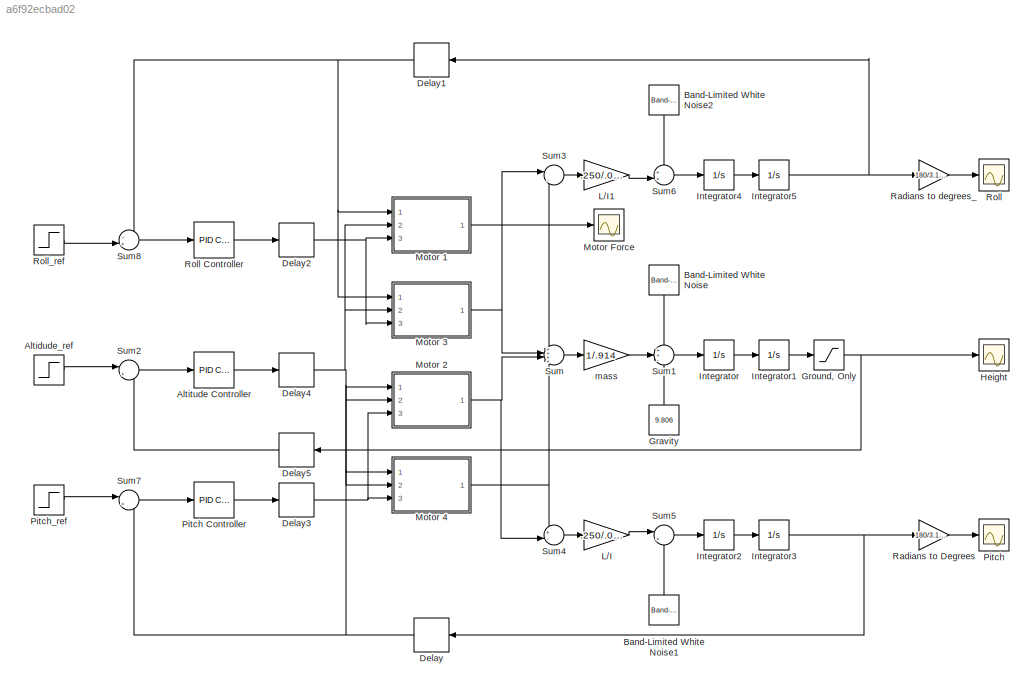
MODEL slx_a6f92ecbad02
KIND model
CONFIG AbsTol = auto
CONFIG EnableMultiTasking = off
CONFIG FixedStep = auto
CONFIG MaxStep = auto
CONFIG MinStep = auto
CONFIG RelTol = 1e-3
CONFIG SampleTimeConstraint = Unconstrained
CONFIG Solver = VariableStepAuto
CONFIG SolverName = VariableStepAuto
CONFIG StartTime = 0.0
CONFIG StopTime = 10
BLOCK [Step] Altidude_ref
  SampleTime = 0
  Time = 0
BLOCK [Reference] Altitude Controller  REF=simulink/Continuous/PID Controller
  Ports = [1, 1]
  SourceBlock = simulink/Continuous/PID Controller
  SourceProductBaseCode = SL
  SourceProductName = Simulink
  SourceType = PID 1dof
BLOCK [Reference] Band-Limited White Noise  REF=simulink/Sources/Band-Limited
White Noise
  Ports = [0, 1]
  SourceBlock = simulink/Sources/Band-Limited\nWhite Noise
  SourceProductBaseCode = SL
  SourceProductName = Simulink
  SourceType = Band-Limited White Noise.
BLOCK [Reference] Band-Limited White Noise1  REF=simulink/Sources/Band-Limited
White Noise
  Commented = on
  Ports = [0, 1]
  SourceBlock = simulink/Sources/Band-Limited\nWhite Noise
  SourceProductBaseCode = SL
  SourceProductName = Simulink
  SourceType = Band-Limited White Noise.
BLOCK [Reference] Band-Limited White Noise2  REF=simulink/Sources/Band-Limited
White Noise
  Commented = on
  Ports = [0, 1]
  SourceBlock = simulink/Sources/Band-Limited\nWhite Noise
  SourceProductBaseCode = SL
  SourceProductName = Simulink
  SourceType = Band-Limited White Noise.
BLOCK [Delay] Delay
  DelayLength = 1
  InputPortMap = u0
  Ports = [1, 1]
BLOCK [Delay] Delay1
  DelayLength = 1
  InputPortMap = u0
  Ports = [1, 1]
BLOCK [Delay] Delay2
  DelayLength = 1
  InputPortMap = u0
  Ports = [1, 1]
BLOCK [Delay] Delay3
  DelayLength = 1
  InputPortMap = u0
  Ports = [1, 1]
BLOCK [Delay] Delay4
  DelayLength = 1
  InputPortMap = u0
  Ports = [1, 1]
BLOCK [Delay] Delay5
  DelayLength = 1
  InputPortMap = u0
  Ports = [1, 1]
BLOCK [Constant] Gravity
  Value = 9.806
BLOCK [Saturate] Ground, Only 
  InputPortMap = u0
  LowerLimit = 0
  Ports = [1, 1]
  UpperLimit = inf
BLOCK [Scope] Height
  NumInputPorts = 1
  Ports = [1]
  ScopeSpecificationString = Simulink.scopes.TimeScopeBlockCfg('CurrentConfiguration', extmgr.ConfigurationSet(extmgr.Configuration('Core','General UI',true),extmgr.Configuration('Core','Source UI',true),extmgr.Configuration('Sources','WiredSimulink',true,'DataLoggingVariableName','ScopeData1'),extmgr.Configuration('Visuals','Time Domain',true,'SerializedDisplays',{struct('MinYLimReal','-0.12673','MaxYLimReal','1.1406','YLabe...<+1396ch>
BLOCK [Integrator] Integrator
  Ports = [1, 1]
BLOCK [Integrator] Integrator1
  Ports = [1, 1]
BLOCK [Integrator] Integrator2
  Ports = [1, 1]
BLOCK [Integrator] Integrator3
  Ports = [1, 1]
BLOCK [Integrator] Integrator4
  Ports = [1, 1]
BLOCK [Integrator] Integrator5
  Ports = [1, 1]
BLOCK [Gain] L//I
  Gain = .250/.0085532
  OutDataTypeStr = Inherit: Inherit via internal rule
  ParamDataTypeStr = Inherit: Inherit via internal rule
  SaturateOnIntegerOverflow = off
BLOCK [Gain] L//I1
  Gain = .250/.0085532
  OutDataTypeStr = Inherit: Inherit via internal rule
  ParamDataTypeStr = Inherit: Inherit via internal rule
  SaturateOnIntegerOverflow = off
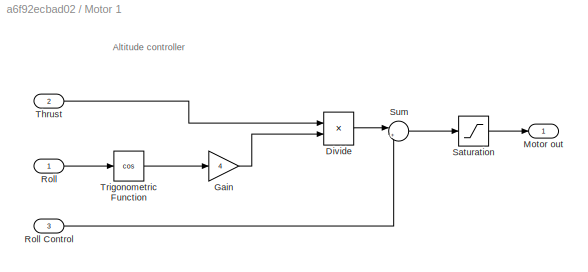
BLOCK [SubSystem] Motor 1
  Ports = [3, 1]
  RequestExecContextInheritance = off
  Variant = off
BLOCK [Product] Motor 1/Divide
  InputSameDT = off
  Inputs = */
  OutDataTypeStr = Inherit: Inherit via internal rule
  Ports = [2, 1]
  RndMeth = Floor
  SaturateOnIntegerOverflow = off
BLOCK [Gain] Motor 1/Gain
  Gain = 4
  OutDataTypeStr = Inherit: Inherit via internal rule
  ParamDataTypeStr = Inherit: Inherit via internal rule
  SaturateOnIntegerOverflow = off
BLOCK [Outport] Motor 1/Motor out
  IconDisplay = Port number
BLOCK [Inport] Motor 1/Roll
  IconDisplay = Port number
BLOCK [Inport] Motor 1/Roll Control
  IconDisplay = Port number
  Port = 3
BLOCK [Saturate] Motor 1/Saturation
  InputPortMap = u0
  LowerLimit = 0.1
  Ports = [1, 1]
  UpperLimit = 5.814
BLOCK [Sum] Motor 1/Sum
  IconShape = round
  InputSameDT = off
  Inputs = |++
  OutDataTypeStr = Inherit: Inherit via internal rule
  Ports = [2, 1]
  SaturateOnIntegerOverflow = off
BLOCK [Inport] Motor 1/Thrust
  IconDisplay = Port number
  Port = 2
BLOCK [Trigonometry] Motor 1/Trigonometric Function
  Operator = cos
  Ports = [1, 1]
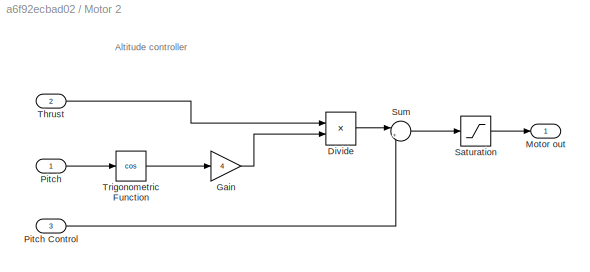
BLOCK [SubSystem] Motor 2
  Ports = [3, 1]
  RequestExecContextInheritance = off
  Variant = off
BLOCK [Product] Motor 2/Divide
  InputSameDT = off
  Inputs = */
  OutDataTypeStr = Inherit: Inherit via internal rule
  Ports = [2, 1]
  RndMeth = Floor
  SaturateOnIntegerOverflow = off
BLOCK [Gain] Motor 2/Gain
  Gain = 4
  OutDataTypeStr = Inherit: Inherit via internal rule
  ParamDataTypeStr = Inherit: Inherit via internal rule
  SaturateOnIntegerOverflow = off
BLOCK [Outport] Motor 2/Motor out
  IconDisplay = Port number
BLOCK [Inport] Motor 2/Pitch
  IconDisplay = Port number
BLOCK [Inport] Motor 2/Pitch Control
  IconDisplay = Port number
  Port = 3
BLOCK [Saturate] Motor 2/Saturation
  InputPortMap = u0
  LowerLimit = 0.1
  Ports = [1, 1]
  UpperLimit = 5.814
BLOCK [Sum] Motor 2/Sum
  IconShape = round
  InputSameDT = off
  Inputs = |+-
  OutDataTypeStr = Inherit: Inherit via internal rule
  Ports = [2, 1]
  SaturateOnIntegerOverflow = off
BLOCK [Inport] Motor 2/Thrust
  IconDisplay = Port number
  Port = 2
BLOCK [Trigonometry] Motor 2/Trigonometric Function
  Operator = cos
  Ports = [1, 1]
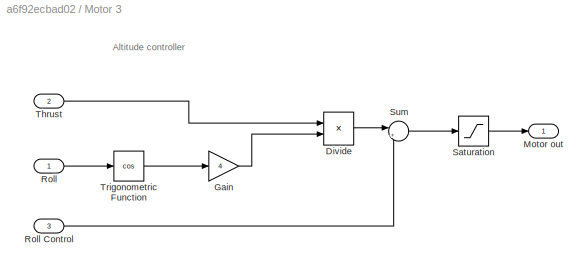
BLOCK [SubSystem] Motor 3
  Ports = [3, 1]
  RequestExecContextInheritance = off
  Variant = off
BLOCK [Product] Motor 3/Divide
  InputSameDT = off
  Inputs = */
  OutDataTypeStr = Inherit: Inherit via internal rule
  Ports = [2, 1]
  RndMeth = Floor
  SaturateOnIntegerOverflow = off
BLOCK [Gain] Motor 3/Gain
  Gain = 4
  OutDataTypeStr = Inherit: Inherit via internal rule
  ParamDataTypeStr = Inherit: Inherit via internal rule
  SaturateOnIntegerOverflow = off
BLOCK [Outport] Motor 3/Motor out
  IconDisplay = Port number
BLOCK [Inport] Motor 3/Roll
  IconDisplay = Port number
BLOCK [Inport] Motor 3/Roll Control
  IconDisplay = Port number
  Port = 3
BLOCK [Saturate] Motor 3/Saturation
  InputPortMap = u0
  LowerLimit = 0.1
  Ports = [1, 1]
  UpperLimit = 5.814
BLOCK [Sum] Motor 3/Sum
  IconShape = round
  InputSameDT = off
  Inputs = |+-
  OutDataTypeStr = Inherit: Inherit via internal rule
  Ports = [2, 1]
  SaturateOnIntegerOverflow = off
BLOCK [Inport] Motor 3/Thrust
  IconDisplay = Port number
  Port = 2
BLOCK [Trigonometry] Motor 3/Trigonometric Function
  Operator = cos
  Ports = [1, 1]
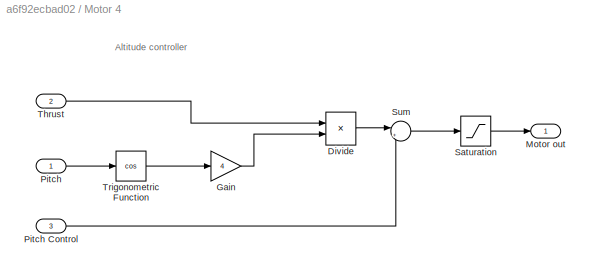
BLOCK [SubSystem] Motor 4
  Ports = [3, 1]
  RequestExecContextInheritance = off
  Variant = off
BLOCK [Product] Motor 4/Divide
  InputSameDT = off
  Inputs = */
  OutDataTypeStr = Inherit: Inherit via internal rule
  Ports = [2, 1]
  RndMeth = Floor
  SaturateOnIntegerOverflow = off
BLOCK [Gain] Motor 4/Gain
  Gain = 4
  OutDataTypeStr = Inherit: Inherit via internal rule
  ParamDataTypeStr = Inherit: Inherit via internal rule
  SaturateOnIntegerOverflow = off
BLOCK [Outport] Motor 4/Motor out
  IconDisplay = Port number
BLOCK [Inport] Motor 4/Pitch
  IconDisplay = Port number
BLOCK [Inport] Motor 4/Pitch Control
  IconDisplay = Port number
  Port = 3
BLOCK [Saturate] Motor 4/Saturation
  InputPortMap = u0
  LowerLimit = 0.1
  Ports = [1, 1]
  UpperLimit = 5.814
BLOCK [Sum] Motor 4/Sum
  IconShape = round
  InputSameDT = off
  Inputs = |++
  OutDataTypeStr = Inherit: Inherit via internal rule
  Ports = [2, 1]
  SaturateOnIntegerOverflow = off
BLOCK [Inport] Motor 4/Thrust
  IconDisplay = Port number
  Port = 2
BLOCK [Trigonometry] Motor 4/Trigonometric Function
  Operator = cos
  Ports = [1, 1]
BLOCK [Scope] Motor Force
  NumInputPorts = 1
  Ports = [1]
  ScopeSpecificationString = Simulink.scopes.TimeScopeBlockCfg('CurrentConfiguration', extmgr.ConfigurationSet(extmgr.Configuration('Core','General UI',true),extmgr.Configuration('Core','Source UI',true),extmgr.Configuration('Sources','WiredSimulink',true),extmgr.Configuration('Visuals','Time Domain',true,'SerializedDisplays',{struct('MinYLimReal','-0.61425','MaxYLimReal','6.52825','YLabelReal','','MinYLimMag','0.00000','MaxY...<+1356ch>
BLOCK [Scope] Pitch
  NumInputPorts = 1
  Ports = [1]
  ScopeSpecificationString = Simulink.scopes.TimeScopeBlockCfg('CurrentConfiguration', extmgr.ConfigurationSet(extmgr.Configuration('Core','General UI',true),extmgr.Configuration('Core','Source UI',true),extmgr.Configuration('Sources','WiredSimulink',true,'DataLoggingVariableName','ScopeData3'),extmgr.Configuration('Visuals','Time Domain',true,'SerializedDisplays',{struct('MinYLimReal','-1.00000','MaxYLimReal','1.00000','YLab...<+1377ch>
BLOCK [Reference] Pitch Controller  REF=simulink/Continuous/PID Controller
  Ports = [1, 1]
  SourceBlock = simulink/Continuous/PID Controller
  SourceProductBaseCode = SL
  SourceProductName = Simulink
  SourceType = PID 1dof
BLOCK [Step] Pitch_ref
  After = 0
  SampleTime = 0
  Time = 0
BLOCK [Gain] Radians to Degrees
  Gain = 180/3.1415
  OutDataTypeStr = Inherit: Inherit via internal rule
  ParamDataTypeStr = Inherit: Inherit via internal rule
  SaturateOnIntegerOverflow = off
BLOCK [Gain] Radians to degrees_
  Gain = 180/3.1415
  OutDataTypeStr = Inherit: Inherit via internal rule
  ParamDataTypeStr = Inherit: Inherit via internal rule
  SaturateOnIntegerOverflow = off
BLOCK [Scope] Roll
  NumInputPorts = 1
  Ports = [1]
  ScopeSpecificationString = Simulink.scopes.TimeScopeBlockCfg('CurrentConfiguration', extmgr.ConfigurationSet(extmgr.Configuration('Core','General UI',true),extmgr.Configuration('Core','Source UI',true),extmgr.Configuration('Sources','WiredSimulink',true,'DataLoggingVariableName','ScopeData2'),extmgr.Configuration('Visuals','Time Domain',true,'SerializedDisplays',{struct('MinYLimReal','-1.00000','MaxYLimReal','1.00000','YLab...<+1406ch>
BLOCK [Reference] Roll Controller  REF=simulink/Continuous/PID Controller
  Ports = [1, 1]
  SourceBlock = simulink/Continuous/PID Controller
  SourceProductBaseCode = SL
  SourceProductName = Simulink
  SourceType = PID 1dof
BLOCK [Step] Roll_ref
  After = 2*3.1415/180
  SampleTime = 0
  Time = 0
BLOCK [Sum] Sum
  IconShape = round
  InputSameDT = off
  Inputs = ++++
  OutDataTypeStr = Inherit: Inherit via internal rule
  Ports = [4, 1]
  SaturateOnIntegerOverflow = off
BLOCK [Sum] Sum1
  IconShape = round
  InputSameDT = off
  Inputs = ++-
  OutDataTypeStr = Inherit: Inherit via internal rule
  Ports = [3, 1]
  SaturateOnIntegerOverflow = off
BLOCK [Sum] Sum2
  IconShape = round
  InputSameDT = off
  Inputs = |+-
  OutDataTypeStr = Inherit: Inherit via internal rule
  Ports = [2, 1]
  SaturateOnIntegerOverflow = off
BLOCK [Sum] Sum3
  IconShape = round
  InputSameDT = off
  Inputs = ||-+
  OutDataTypeStr = Inherit: Inherit via internal rule
  Ports = [2, 1]
  SaturateOnIntegerOverflow = off
BLOCK [Sum] Sum4
  IconShape = round
  InputSameDT = off
  Inputs = +-||
  OutDataTypeStr = Inherit: Inherit via internal rule
  Ports = [2, 1]
  SaturateOnIntegerOverflow = off
BLOCK [Sum] Sum5
  IconShape = round
  InputSameDT = off
  Inputs = |++
  OutDataTypeStr = Inherit: Inherit via internal rule
  Ports = [2, 1]
  SaturateOnIntegerOverflow = off
BLOCK [Sum] Sum6
  IconShape = round
  InputSameDT = off
  Inputs = ++|
  OutDataTypeStr = Inherit: Inherit via internal rule
  Ports = [2, 1]
  SaturateOnIntegerOverflow = off
BLOCK [Sum] Sum7
  IconShape = round
  InputSameDT = off
  Inputs = |+-
  OutDataTypeStr = Inherit: Inherit via internal rule
  Ports = [2, 1]
  SaturateOnIntegerOverflow = off
BLOCK [Sum] Sum8
  IconShape = round
  InputSameDT = off
  Inputs = -+|
  OutDataTypeStr = Inherit: Inherit via internal rule
  Ports = [2, 1]
  SaturateOnIntegerOverflow = off
BLOCK [Gain] mass
  Gain = 1/.914
  OutDataTypeStr = Inherit: Inherit via internal rule
  ParamDataTypeStr = Inherit: Inherit via internal rule
  SaturateOnIntegerOverflow = off
ANNOTATION Motor 1: Altitude controller
ANNOTATION Motor 2: Altitude controller
ANNOTATION Motor 3: Altitude controller
ANNOTATION Motor 4: Altitude controller
LINE Altidude_ref:1 -> Sum2:1
LINE Altitude Controller:1 -> Delay4:1
LINE Band-Limited White Noise1:1 -> Sum5:2
LINE Band-Limited White Noise2:1 -> Sum6:1
LINE Band-Limited White Noise:1 -> Sum1:1
NET Delay1:1 -> Motor 1:1, Motor 3:1, Sum8:1
NET Delay2:1 -> Motor 1:3, Motor 3:3
NET Delay3:1 -> Motor 2:3, Motor 4:3
NET Delay4:1 -> Motor 1:2, Motor 2:2, Motor 3:2, Motor 4:2
LINE Delay5:1 -> Sum2:2
NET Delay:1 -> Motor 2:1, Motor 4:1, Sum7:2
LINE Gravity:1 -> Sum1:3
NET Ground, Only :1 -> Delay5:1, Height:1
LINE Integrator1:1 -> Ground, Only :1
LINE Integrator2:1 -> Integrator3:1
NET Integrator3:1 -> Delay:1, Radians to Degrees:1
LINE Integrator4:1 -> Integrator5:1
NET Integrator5:1 -> Delay1:1, Radians to degrees_:1
LINE Integrator:1 -> Integrator1:1
LINE L//I1:1 -> Sum6:2
LINE L//I:1 -> Sum5:1
LINE Motor 1/Divide:1 -> Motor 1/Sum:1
LINE Motor 1/Gain:1 -> Motor 1/Divide:2
LINE Motor 1/Roll Control:1 -> Motor 1/Sum:2
LINE Motor 1/Roll:1 -> Motor 1/Trigonometric Function:1
LINE Motor 1/Saturation:1 -> Motor 1/Motor out:1
LINE Motor 1/Sum:1 -> Motor 1/Saturation:1
LINE Motor 1/Thrust:1 -> Motor 1/Divide:1
LINE Motor 1/Trigonometric Function:1 -> Motor 1/Gain:1
NET Motor 1:1 -> Motor Force:1, Sum3:2, Sum:1
LINE Motor 2/Divide:1 -> Motor 2/Sum:1
LINE Motor 2/Gain:1 -> Motor 2/Divide:2
LINE Motor 2/Pitch Control:1 -> Motor 2/Sum:2
LINE Motor 2/Pitch:1 -> Motor 2/Trigonometric Function:1
LINE Motor 2/Saturation:1 -> Motor 2/Motor out:1
LINE Motor 2/Sum:1 -> Motor 2/Saturation:1
LINE Motor 2/Thrust:1 -> Motor 2/Divide:1
LINE Motor 2/Trigonometric Function:1 -> Motor 2/Gain:1
NET Motor 2:1 -> Sum4:2, Sum:3
LINE Motor 3/Divide:1 -> Motor 3/Sum:1
LINE Motor 3/Gain:1 -> Motor 3/Divide:2
LINE Motor 3/Roll Control:1 -> Motor 3/Sum:2
LINE Motor 3/Roll:1 -> Motor 3/Trigonometric Function:1
LINE Motor 3/Saturation:1 -> Motor 3/Motor out:1
LINE Motor 3/Sum:1 -> Motor 3/Saturation:1
LINE Motor 3/Thrust:1 -> Motor 3/Divide:1
LINE Motor 3/Trigonometric Function:1 -> Motor 3/Gain:1
NET Motor 3:1 -> Sum3:1, Sum:2
LINE Motor 4/Divide:1 -> Motor 4/Sum:1
LINE Motor 4/Gain:1 -> Motor 4/Divide:2
LINE Motor 4/Pitch Control:1 -> Motor 4/Sum:2
LINE Motor 4/Pitch:1 -> Motor 4/Trigonometric Function:1
LINE Motor 4/Saturation:1 -> Motor 4/Motor out:1
LINE Motor 4/Sum:1 -> Motor 4/Saturation:1
LINE Motor 4/Thrust:1 -> Motor 4/Divide:1
LINE Motor 4/Trigonometric Function:1 -> Motor 4/Gain:1
NET Motor 4:1 -> Sum4:1, Sum:4
LINE Pitch Controller:1 -> Delay3:1
LINE Pitch_ref:1 -> Sum7:1
LINE Radians to Degrees:1 -> Pitch:1
LINE Radians to degrees_:1 -> Roll:1
LINE Roll Controller:1 -> Delay2:1
LINE Roll_ref:1 -> Sum8:2
LINE Sum1:1 -> Integrator:1
LINE Sum2:1 -> Altitude Controller:1
LINE Sum3:1 -> L//I1:1
LINE Sum4:1 -> L//I:1
LINE Sum5:1 -> Integrator2:1
LINE Sum6:1 -> Integrator4:1
LINE Sum7:1 -> Pitch Controller:1
LINE Sum8:1 -> Roll Controller:1
LINE Sum:1 -> mass:1
LINE mass:1 -> Sum1:2
note: NET lines group one-source signal fan-out (src -> all destinations, sorted); 1:1 wires keep LINE
